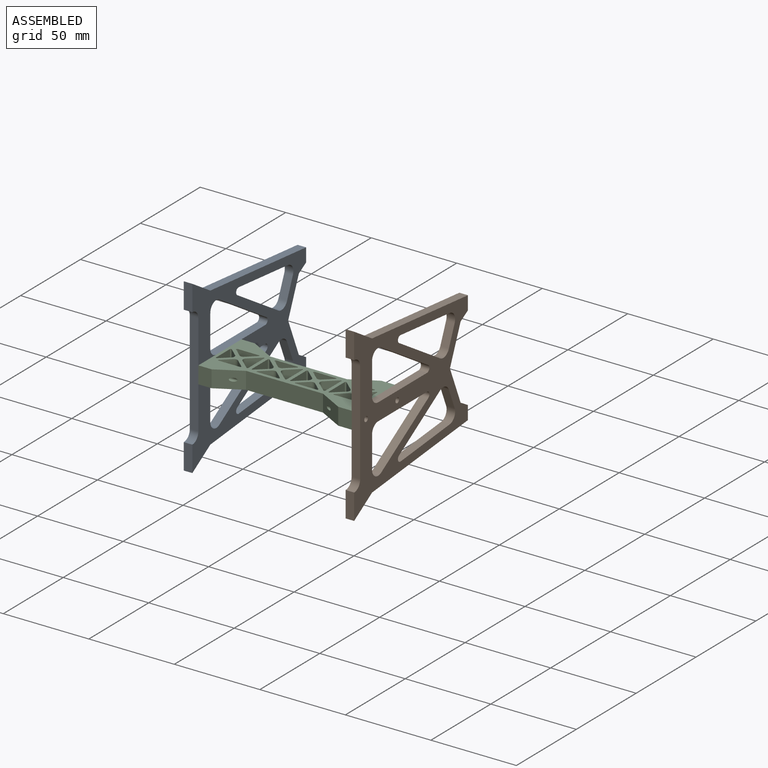
[diagram: assembled view]
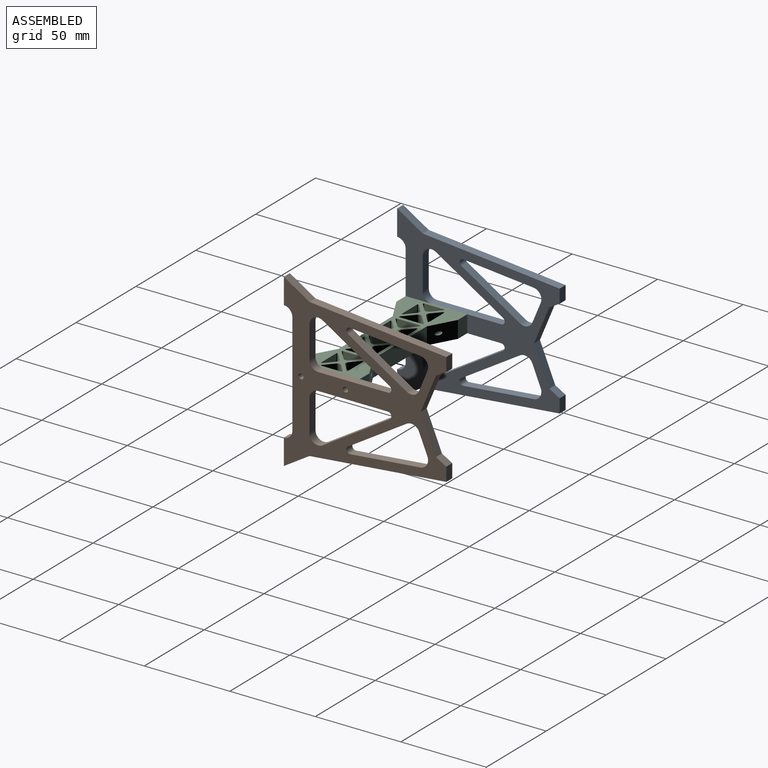
[diagram: assembled view, second angle]
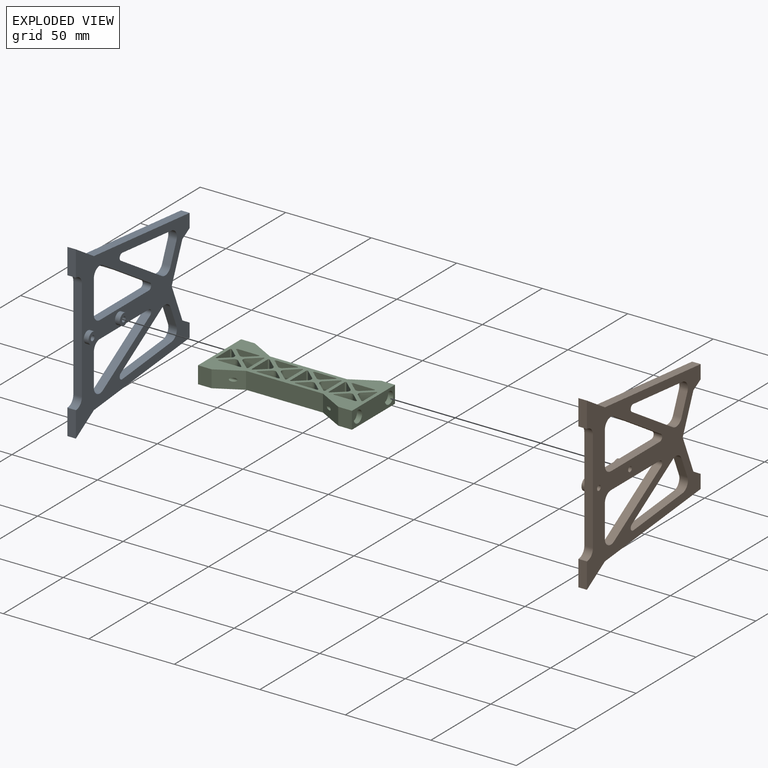
[diagram: exploded view]
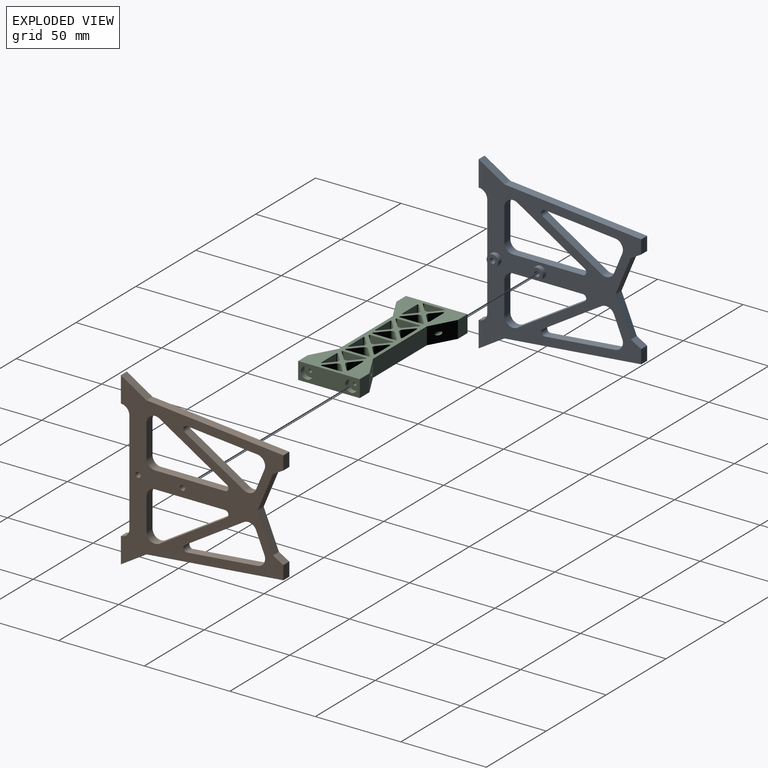
[diagram: exploded view, second angle]
ASSEMBLY  parts=3 mates=2
PART A: 47 faces, bbox 100x95x7.8 mm
  f0: plane 21.5x8.94mm, normal (-0.38,0.92,0), area 116.4mm2, adj f1,f26,f27,f28
  f1: plane 21.5x8.94mm, normal (0.38,0.92,0), area 116.4mm2, adj f0,f2,f27,f28
  f2: plane 6.06x5mm, normal (0.87,0.5,0), area 35mm2, adj f1,f3,f27,f28
  f3: plane 8x5mm, normal (0,1,0), area 40mm2, adj f2,f4,f27,f28
  f4: plane 80x7.71mm, normal (-1,0.1,0), area 401.9mm2, adj f3,f5,f27,f28
  f5: plane 15x9.29mm, normal (-0.85,0.53,0), area 88.2mm2, adj f4,f6,f27,f28
  f6: plane 15x5mm, normal (0,-1,0), area 75mm2, adj f5,f7,f27,f28
  f7: cylinder r=5mm len=5mm, axis (0,0,-1), area 39.3mm2, adj f6,f8,f27,f28
  f8: plane 60x5mm, normal (0,-1,0), area 300mm2, adj f7,f9,f27,f28
  f9: cylinder r=5mm len=5mm, axis (0,0,-1), area 39.3mm2, adj f8,f10,f27,f28
  f10: plane 15x5mm, normal (0,-1,0), area 75mm2, adj f9,f11,f27,f28
  f11: plane 15x9.29mm, normal (0.85,0.53,0), area 88.2mm2, adj f10,f12,f27,f28
  f12: plane 80x7.71mm, normal (1,0.1,0), area 401.9mm2, adj f11,f13,f27,f28
  f13: plane 8x5mm, normal (0,1,0), area 40mm2, adj f12,f26,f27,f28
  f14: plane 34.31x21.25mm, normal (0.85,0.53,0), area 201.8mm2, adj f27,f28,f32,f40
  f15: plane 11.76x5mm, normal (0.38,-0.92,0), area 63.7mm2, adj f27,f28,f32,f33
  f16: plane 40.88x5mm, normal (1,0,0), area 204.4mm2, adj f27,f28,f31,f39
  f17: plane 39.3x24.34mm, normal (-0.85,-0.53,0), area 231.1mm2, adj f27,f28,f35,f39
  f18: plane 34.31x21.25mm, normal (-0.85,0.53,0), area 201.8mm2, adj f27,f28,f29,f38
  f19: plane 41.06x5mm, normal (1,-0.1,0), area 206.3mm2, adj f27,f28,f34,f38
  f20: plane 18.79x5mm, normal (0,1,0), area 94mm2, adj f27,f28,f30,f36
  f21: plane 39.3x24.34mm, normal (0.85,-0.53,0), area 231.1mm2, adj f27,f28,f36,f37
  f22: plane 41.06x5mm, normal (-1,-0.1,0), area 206.3mm2, adj f27,f28,f33,f40
  f23: plane 18.79x5mm, normal (0,1,0), area 94mm2, adj f27,f28,f31,f35
  f24: plane 11.76x5mm, normal (-0.38,-0.92,0), area 63.7mm2, adj f27,f28,f29,f34
  f25: plane 40.88x5mm, normal (-1,0,0), area 204.4mm2, adj f27,f28,f30,f37
  f26: plane 6.06x5mm, normal (-0.87,0.5,0), area 35mm2, adj f0,f13,f27,f28
  f27: plane 100x95mm, normal (0,0,1), area 3390.4mm2, adj f0,f1,f2,f3,f4,f5,f6,f7
  f28: plane 100x95mm, normal (0,0,-1), area 3448.9mm2, adj f0,f1,f2,f3,f4,f5,f6,f7
  f29: cylinder r=5mm len=7.25mm, axis (0,0,1), area 43.3mm2, adj f18,f24,f27,f28
  f30: cylinder r=5mm len=5mm, axis (0,0,-1), area 39.3mm2, adj f20,f25,f27,f28
  f31: cylinder r=5mm len=5mm, axis (0,0,1), area 39.3mm2, adj f16,f23,f27,f28
  f32: cylinder r=5mm len=7.25mm, axis (0,0,1), area 43.3mm2, adj f14,f15,f27,f28
  f33: cylinder r=5mm len=6.9mm, axis (0,0,-1), area 46.7mm2, adj f15,f22,f27,f28
  f34: cylinder r=5mm len=6.9mm, axis (0,0,-1), area 46.7mm2, adj f19,f24,f27,f28
  f35: cylinder r=5mm len=7.63mm, axis (0,0,1), area 53.1mm2, adj f17,f23,f27,f28
  f36: cylinder r=5mm len=7.63mm, axis (0,0,1), area 53.1mm2, adj f20,f21,f27,f28
  f37: cylinder r=2mm len=5mm, axis (0,0,-1), area 25.9mm2, adj f21,f25,f27,f28
  f38: cylinder r=2mm len=5mm, axis (0,0,-1), area 26.8mm2, adj f18,f19,f27,f28
  f39: cylinder r=2mm len=5mm, axis (0,0,1), area 25.9mm2, adj f16,f17,f27,f28
  f40: cylinder r=2mm len=5mm, axis (0,0,-1), area 26.8mm2, adj f14,f22,f27,f28
  f41: cylinder r=3.4mm len=6.8mm, axis (0,0,-1), area 59.8mm2, adj f27,f42
  f42: plane 6.8x6.8mm, normal (0,0,1), area 29.2mm2, adj f41,f46
  f43: cylinder r=3.4mm len=6.8mm, axis (0,0,-1), area 59.8mm2, adj f27,f44
  f44: plane 6.8x6.8mm, normal (0,0,1), area 29.2mm2, adj f43,f45
  f45: cylinder r=1.5mm len=7.8mm, axis (0,0,1), area 73.5mm2, adj f28,f44
  f46: cylinder r=1.5mm len=7.8mm, axis (0,0,1), area 73.5mm2, adj f28,f42
PART B: same geometry as A
PART C: 123 faces, bbox 90.8x36.8x10.8 mm
  f0: plane 10x5.19mm, normal (-0.66,-0.75,0), area 69.4mm2, adj f61,f62,f78,f102
  f1: plane 12.36x10mm, normal (0,1,0), area 123.6mm2, adj f61,f62,f102,f105
  f2: plane 10x6.24mm, normal (0.66,0.75,0), area 83.4mm2, adj f61,f62,f74,f104
  f3: plane 10x6.24mm, normal (0.66,-0.75,0), area 83.4mm2, adj f61,f62,f74,f101
  f4: plane 10x6.24mm, normal (-0.66,0.75,0), area 83.4mm2, adj f61,f62,f73,f96
  f5: plane 13.33x10mm, normal (1,0,0), area 133.3mm2, adj f61,f62,f96,f108
  f6: plane 10x6.23mm, normal (-0.66,0.75,0), area 83.4mm2, adj f61,f62,f75,f110
  f7: plane 13.32x10mm, normal (1,0,0), area 133.2mm2, adj f61,f62,f93,f110
  f8: plane 10x5.19mm, normal (0.66,0.75,0), area 69.4mm2, adj f61,f62,f70,f98
  f9: plane 12.37x10mm, normal (0,-1,0), area 123.7mm2, adj f61,f62,f98,f109
  f10: plane 10x2.74mm, normal (-0.66,0.75,0), area 36.6mm2, adj f47,f61,f62,f109
  f11: plane 10x5.19mm, normal (-0.66,-0.75,0), area 69.4mm2, adj f61,f62,f71,f89
  f12: plane 12.37x10mm, normal (0,1,0), area 123.7mm2, adj f61,f62,f89,f94
  f13: plane 13.33x10mm, normal (1,0,0), area 133.3mm2, adj f61,f62,f88,f97
  f14: plane 10x6.24mm, normal (-0.66,-0.75,0), area 83.4mm2, adj f61,f62,f72,f97
  f15: plane 11.54x10mm, normal (1,0,0), area 115.4mm2, adj f61,f62,f87,f103
  f16: plane 10x5.23mm, normal (-0.66,-0.75,0), area 70mm2, adj f61,f62,f68,f87
  f17: plane 10x6.23mm, normal (0.66,-0.75,0), area 83.4mm2, adj f61,f62,f77,f100
  f18: plane 13.33x10mm, normal (-1,0,0), area 133.3mm2, adj f61,f62,f86,f100
  f19: plane 10x5.18mm, normal (0.66,0.75,0), area 69.3mm2, adj f61,f62,f67,f85
  f20: plane 12.36x10mm, normal (0,-1,0), area 123.6mm2, adj f61,f62,f85,f91
  f21: plane 10x5.19mm, normal (-0.66,0.75,0), area 69.4mm2, adj f61,f62,f66,f99
  f22: plane 10x5.19mm, normal (0.66,0.75,0), area 69.4mm2, adj f61,f62,f66,f92
  f23: plane 10x5.18mm, normal (0.66,-0.75,0), area 69.3mm2, adj f61,f62,f76,f106
  f24: plane 10x5.18mm, normal (-0.66,-0.75,0), area 69.3mm2, adj f61,f62,f76,f83
  f25: plane 10x5.24mm, normal (0.66,0.75,0), area 70.1mm2, adj f61,f62,f65,f107
  f26: plane 10x5.24mm, normal (0.66,-0.75,0), area 70.1mm2, adj f61,f62,f65,f82
  f27: plane 10x5.19mm, normal (0.66,0.75,0), area 69.4mm2, adj f61,f62,f64,f81
  f28: plane 12.37x10mm, normal (0,-1,0), area 123.7mm2, adj f61,f62,f81,f95
  f29: plane 10x5.19mm, normal (-0.66,-0.75,0), area 69.4mm2, adj f61,f62,f63,f80
  f30: plane 12.37x10mm, normal (0,1,0), area 123.7mm2, adj f61,f62,f80,f84
  f31: plane 10x6.23mm, normal (0.66,-0.75,0), area 83.4mm2, adj f61,f62,f69,f79
  f32: plane 13.32x10mm, normal (-1,0,0), area 133.2mm2, adj f61,f62,f79,f90
  f33: plane 45x10mm, normal (0,1,0), area 450mm2, adj f34,f59,f61,f62
  f34: plane 15.26x10.76mm, normal (0.48,0.88,0), area 159.1mm2, adj f33,f35,f61,f62,f121
  f35: plane 10x8mm, normal (0,1,0), area 80mm2, adj f34,f36,f61,f62
  f36: plane 36x10mm, normal (-1,0,0), area 283mm2, adj f35,f37,f61,f62,f117,f119
  f37: plane 10x8mm, normal (0,-1,0), area 80mm2, adj f36,f38,f61,f62
  f38: plane 14.5x10mm, normal (0.48,-0.88,0), area 159.1mm2, adj f37,f39,f61,f62,f122
  f39: plane 45x10mm, normal (0,-1,0), area 450mm2, adj f38,f40,f61,f62
  f40: plane 15.26x10.76mm, normal (-0.48,-0.88,0), area 159.1mm2, adj f39,f41,f61,f62,f115
  f41: plane 10x8mm, normal (0,-1,0), area 80mm2, adj f40,f42,f61,f62
  f42: plane 36x10mm, normal (1,0,0), area 283mm2, adj f41,f43,f61,f62,f111,f113
  f43: plane 10x8mm, normal (0,1,0), area 80mm2, adj f42,f59,f61,f62
  f44: plane 13.33x10mm, normal (-1,0,0), area 133.3mm2, adj f61,f62,f101,f104
  f45: plane 10x6.24mm, normal (-0.66,-0.75,0), area 83.4mm2, adj f61,f62,f73,f108
  f46: plane 10x6.23mm, normal (-0.66,-0.75,0), area 83.4mm2, adj f61,f62,f75,f93
  f47: plane 10x2.45mm, normal (-0.66,0.75,0), area 32.8mm2, adj f10,f61,f62,f70
  f48: plane 10x5.19mm, normal (0.66,-0.75,0), area 69.4mm2, adj f61,f62,f71,f94
  f49: plane 10x6.24mm, normal (-0.66,0.75,0), area 83.4mm2, adj f61,f62,f72,f88
  f50: plane 10x5.23mm, normal (-0.66,0.75,0), area 70mm2, adj f61,f62,f68,f103
  f51: plane 10x6.23mm, normal (0.66,0.75,0), area 83.4mm2, adj f61,f62,f77,f86
  f52: plane 10x5.18mm, normal (-0.66,0.75,0), area 69.3mm2, adj f61,f62,f67,f91
  f53: plane 12.37x10mm, normal (0,-1,0), area 123.7mm2, adj f61,f62,f92,f99
  f54: plane 12.36x10mm, normal (0,1,0), area 123.6mm2, adj f61,f62,f83,f106
  f55: plane 11.55x10mm, normal (-1,0,0), area 115.5mm2, adj f61,f62,f82,f107
  f56: plane 10x5.19mm, normal (-0.66,0.75,0), area 69.4mm2, adj f61,f62,f64,f95
  f57: plane 10x5.19mm, normal (0.66,-0.75,0), area 69.4mm2, adj f61,f62,f63,f84
  f58: plane 10x6.23mm, normal (0.66,0.75,0), area 83.4mm2, adj f61,f62,f69,f90
  f59: plane 15.26x10.76mm, normal (-0.48,0.88,0), area 159.1mm2, adj f33,f43,f61,f62,f116
  f60: plane 10x5.18mm, normal (0.66,-0.75,0), area 69.4mm2, adj f61,f62,f78,f105
  f61: plane 90x36mm, normal (0,0,1), area 1397.5mm2, adj f0,f1,f2,f3,f4,f5,f6,f7
  f62: plane 90x36mm, normal (0,0,-1), area 1397.5mm2, adj f0,f1,f2,f3,f4,f5,f6,f7
  f63: cylinder r=2mm len=10mm, axis (0,0,1), area 29.1mm2, adj f29,f57,f61,f62
  f64: cylinder r=2mm len=10mm, axis (0,0,1), area 29.1mm2, adj f27,f56,f61,f62
  f65: cylinder r=2mm len=10mm, axis (0,0,-1), area 33.8mm2, adj f25,f26,f61,f62
  f66: cylinder r=2mm len=10mm, axis (0,0,1), area 29.1mm2, adj f21,f22,f61,f62
  f67: cylinder r=2mm len=10mm, axis (0,0,1), area 29.1mm2, adj f19,f52,f61,f62
  f68: cylinder r=2mm len=10mm, axis (0,0,-1), area 33.8mm2, adj f16,f50,f61,f62
  f69: cylinder r=2mm len=10mm, axis (0,0,1), area 33.8mm2, adj f31,f58,f61,f62
  f70: cylinder r=2mm len=10mm, axis (0,0,-1), area 29.1mm2, adj f8,f47,f61,f62
  f71: cylinder r=2mm len=10mm, axis (0,0,1), area 29.1mm2, adj f11,f48,f61,f62
  f72: cylinder r=2mm len=10mm, axis (0,0,-1), area 33.8mm2, adj f14,f49,f61,f62
  f73: cylinder r=2mm len=10mm, axis (0,0,-1), area 33.8mm2, adj f4,f45,f61,f62
  f74: cylinder r=2mm len=10mm, axis (0,0,-1), area 33.8mm2, adj f2,f3,f61,f62
  f75: cylinder r=2mm len=10mm, axis (0,0,1), area 33.8mm2, adj f6,f46,f61,f62
  f76: cylinder r=2mm len=10mm, axis (0,0,-1), area 29.1mm2, adj f23,f24,f61,f62
  f77: cylinder r=2mm len=10mm, axis (0,0,1), area 33.8mm2, adj f17,f51,f61,f62
  f78: cylinder r=2mm len=10mm, axis (0,0,-1), area 29.1mm2, adj f0,f60,f61,f62
  f79: cylinder r=0.5mm len=10mm, axis (0,0,1), area 11.5mm2, adj f31,f32,f61,f62
  f80: cylinder r=0.5mm len=10mm, axis (0,0,1), area 12.1mm2, adj f29,f30,f61,f62
  f81: cylinder r=0.5mm len=10mm, axis (0,0,-1), area 12.1mm2, adj f27,f28,f61,f62
  f82: cylinder r=0.5mm len=10mm, axis (0,0,-1), area 11.5mm2, adj f26,f55,f61,f62
  f83: cylinder r=0.5mm len=10mm, axis (0,0,1), area 12.1mm2, adj f24,f54,f61,f62
  f84: cylinder r=0.5mm len=10mm, axis (0,0,1), area 12.1mm2, adj f30,f57,f61,f62
  f85: cylinder r=0.5mm len=10mm, axis (0,0,1), area 12.1mm2, adj f19,f20,f61,f62
  f86: cylinder r=0.5mm len=10mm, axis (0,0,-1), area 11.5mm2, adj f18,f51,f61,f62
  f87: cylinder r=0.5mm len=10mm, axis (0,0,-1), area 11.5mm2, adj f15,f16,f61,f62
  f88: cylinder r=0.5mm len=10mm, axis (0,0,1), area 11.5mm2, adj f13,f49,f61,f62
  f89: cylinder r=0.5mm len=10mm, axis (0,0,1), area 12.1mm2, adj f11,f12,f61,f62
  f90: cylinder r=0.5mm len=10mm, axis (0,0,1), area 11.5mm2, adj f32,f58,f61,f62
  f91: cylinder r=0.5mm len=10mm, axis (0,0,1), area 12.1mm2, adj f20,f52,f61,f62
  f92: cylinder r=0.5mm len=10mm, axis (0,0,-1), area 12.1mm2, adj f22,f53,f61,f62
  f93: cylinder r=0.5mm len=10mm, axis (0,0,-1), area 11.5mm2, adj f7,f46,f61,f62
  f94: cylinder r=0.5mm len=10mm, axis (0,0,1), area 12.1mm2, adj f12,f48,f61,f62
  f95: cylinder r=0.5mm len=10mm, axis (0,0,-1), area 12.1mm2, adj f28,f56,f61,f62
  f96: cylinder r=0.5mm len=10mm, axis (0,0,1), area 11.5mm2, adj f4,f5,f61,f62
  f97: cylinder r=0.5mm len=10mm, axis (0,0,-1), area 11.5mm2, adj f13,f14,f61,f62
  f98: cylinder r=0.5mm len=10mm, axis (0,0,-1), area 12.1mm2, adj f8,f9,f61,f62
  f99: cylinder r=0.5mm len=10mm, axis (0,0,-1), area 12.1mm2, adj f21,f53,f61,f62
  f100: cylinder r=0.5mm len=10mm, axis (0,0,-1), area 11.5mm2, adj f17,f18,f61,f62
  f101: cylinder r=0.5mm len=10mm, axis (0,0,1), area 11.5mm2, adj f3,f44,f61,f62
  f102: cylinder r=0.5mm len=10mm, axis (0,0,1), area 12.1mm2, adj f0,f1,f61,f62
  f103: cylinder r=0.5mm len=10mm, axis (0,0,1), area 11.5mm2, adj f15,f50,f61,f62
  f104: cylinder r=0.5mm len=10mm, axis (0,0,-1), area 11.5mm2, adj f2,f44,f61,f62
  f105: cylinder r=0.5mm len=10mm, axis (0,0,-1), area 12.1mm2, adj f1,f60,f61,f62
  f106: cylinder r=0.5mm len=10mm, axis (0,0,-1), area 12.1mm2, adj f23,f54,f61,f62
  f107: cylinder r=0.5mm len=10mm, axis (0,0,1), area 11.5mm2, adj f25,f55,f61,f62
  f108: cylinder r=0.5mm len=10mm, axis (0,0,-1), area 11.5mm2, adj f5,f45,f61,f62
  f109: cylinder r=0.5mm len=10mm, axis (0,0,-1), area 12.1mm2, adj f9,f10,f61,f62
  f110: cylinder r=0.5mm len=10mm, axis (0,0,-1), area 11.5mm2, adj f6,f7,f61,f62
  f111: cylinder r=3.5mm len=7mm, axis (1,0,0), area 66mm2, adj f42,f112
  f112: plane 7x7mm, normal (1,0,0), area 35.3mm2, adj f111,f116
  f113: cylinder r=3.5mm len=7mm, axis (1,0,0), area 66mm2, adj f42,f114
  f114: plane 7x7mm, normal (1,0,0), area 35.3mm2, adj f113,f115
  f115: cylinder r=1mm len=15.88mm, axis (1,0,0), area 88.7mm2, adj f40,f114
  f116: cylinder r=1mm len=15.88mm, axis (1,0,0), area 88.7mm2, adj f59,f112
  f117: cylinder r=3.5mm len=7mm, axis (-1,0,0), area 66mm2, adj f36,f118
  f118: plane 7x7mm, normal (-1,0,0), area 35.3mm2, adj f117,f122
  f119: cylinder r=3.5mm len=7mm, axis (-1,0,0), area 66mm2, adj f36,f120
  f120: plane 7x7mm, normal (-1,0,0), area 35.3mm2, adj f119,f121
  f121: cylinder r=1mm len=15.88mm, axis (-1,0,0), area 88.4mm2, adj f34,f120
  f122: cylinder r=1mm len=15.9mm, axis (-1,0,0), area 88.4mm2, adj f38,f118
PLACE A rot(axis=(0,1,0),90deg) t=(-119.06,-13.15,-66.25)mm
PLACE B rot(axis=(0,-1,0),90deg) t=(-19.46,-13.15,-6.04)mm
PLACE C t=(-76.33,-75.14,-41.14)mm
MATE parallel B.f41 <-> C.f113  axis (-1,0,0) through (-27.26,-62.06,-36.14)mm
MATE parallel A.f43 <-> C.f121  axis (1,0,0) through (-111.26,-36.06,-36.14)mm
